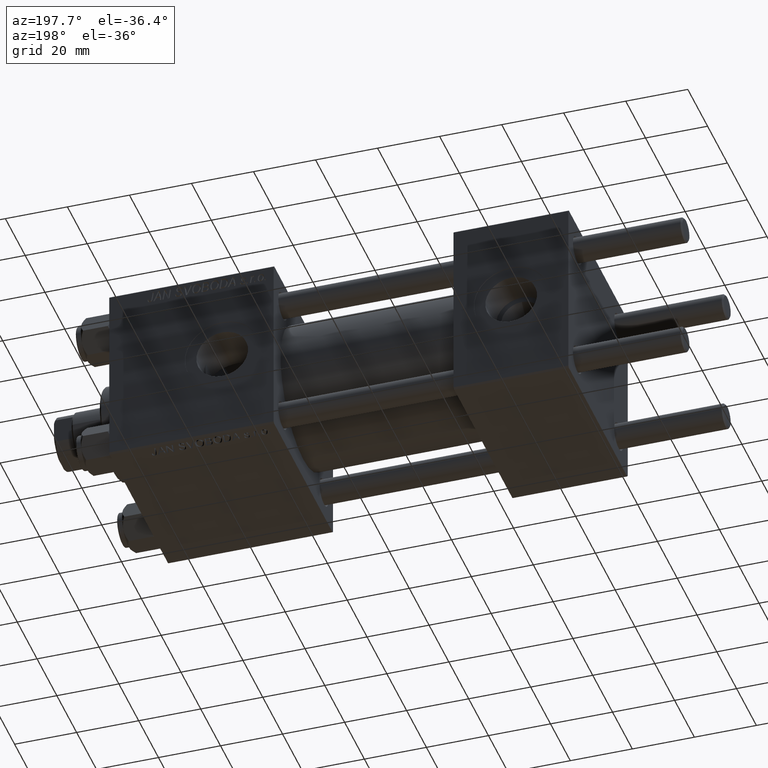
[diagram: clean part render]
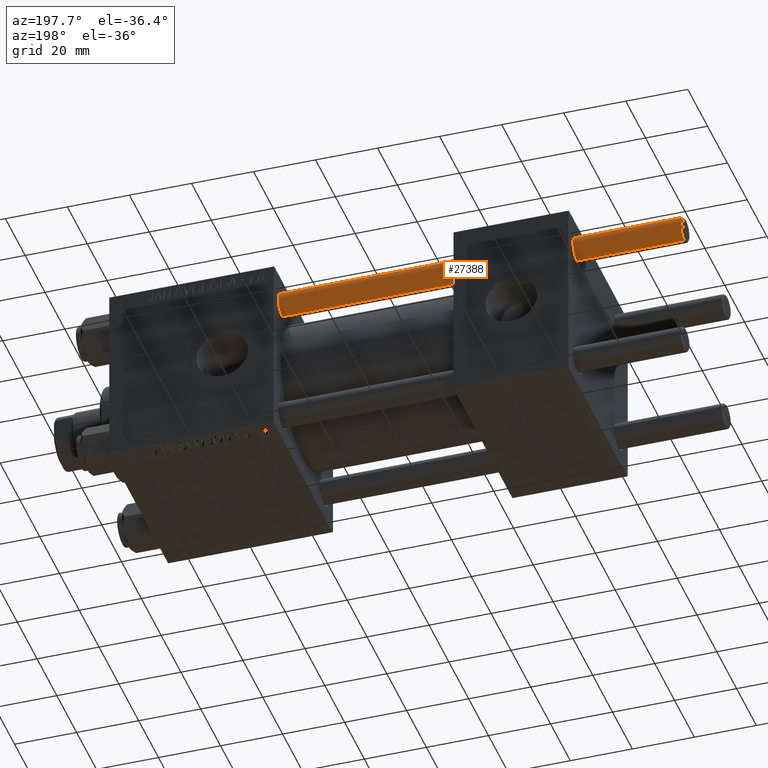
[diagram: same view with one face highlighted and labeled with its STEP entity id]
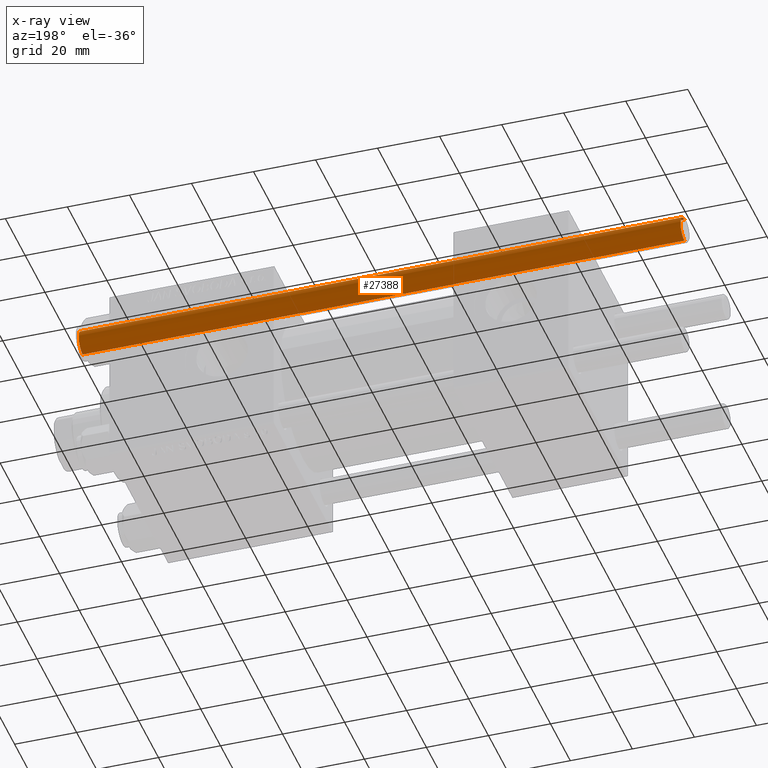
[diagram: x-ray of the same camera — body ghosted, the highlighted face saturated]
A machine part, auxiliary view. The second image highlights one B-rep face of the part: STEP entity #27388.
The next image is the same camera in x-ray: the body ghosted, the highlighted face saturated — about 0% of this face is hidden behind the body in this view.
In plain terms, the highlighted cylindrical surface (edge-blend (fillet) strip) has radius 4 mm, axis along (-1, -0, -0).
Its self-contained STEP definition (entity closure, byte-faithful):
#2360 = DIRECTION ( 'NONE',  ( 0.000000000000000000, 0.000000000000000000, -1.000000000000000000 ) ) ;
#2731 = EDGE_CURVE ( 'NONE', #19727, #22569, #25361, .T. ) ;
#6096 = CARTESIAN_POINT ( 'NONE',  ( 4.000000000000000000, 4.898587196589412829E-16, 0.5000000000000004441 ) ) ;
#7962 = ORIENTED_EDGE ( 'NONE', *, *, #2731, .T. ) ;
#10595 = DIRECTION ( 'NONE',  ( -0.000000000000000000, -0.000000000000000000, -1.000000000000000000 ) ) ;
#12586 = VERTEX_POINT ( 'NONE', #20962 ) ;
#15524 = CARTESIAN_POINT ( 'NONE',  ( 4.000000000000000000, 4.898587196589412829E-16, 194.5000000000000568 ) ) ;
#15737 = DIRECTION ( 'NONE',  ( -0.000000000000000000, -0.000000000000000000, 1.000000000000000000 ) ) ;
#15808 = CARTESIAN_POINT ( 'NONE',  ( 4.000000000000000000, 4.898587196589412829E-16, 195.0000000000000000 ) ) ;
#15992 = CARTESIAN_POINT ( 'NONE',  ( 0.000000000000000000, 0.000000000000000000, 0.5000000000000004441 ) ) ;
#17257 = AXIS2_PLACEMENT_3D ( 'NONE', #17727, #10595, #44533 ) ;
#17727 = CARTESIAN_POINT ( 'NONE',  ( 0.000000000000000000, 0.000000000000000000, 195.0000000000000000 ) ) ;
#18208 = CYLINDRICAL_SURFACE ( 'NONE', #17257, 4.000000000000000000 ) ;
#18364 = VECTOR ( 'NONE', #35769, 1000.000000000000000 ) ;
#19727 = VERTEX_POINT ( 'NONE', #24425 ) ;
#20040 = DIRECTION ( 'NONE',  ( 1.000000000000000000, 0.000000000000000000, 0.000000000000000000 ) ) ;
#20171 = EDGE_CURVE ( 'NONE', #19727, #12586, #20320, .T. ) ;
#20320 = LINE ( 'NONE', #31473, #18364 ) ;
#20446 = ORIENTED_EDGE ( 'NONE', *, *, #30112, .T. ) ;
#20962 = CARTESIAN_POINT ( 'NONE',  ( -4.000000000000000000, 0.000000000000000000, 0.5000000000000004441 ) ) ;
#22569 = VERTEX_POINT ( 'NONE', #15524 ) ;
#24425 = CARTESIAN_POINT ( 'NONE',  ( -4.000000000000000000, 0.000000000000000000, 194.5000000000000568 ) ) ;
#25168 = CARTESIAN_POINT ( 'NONE',  ( 0.000000000000000000, 0.000000000000000000, 194.5000000000000568 ) ) ;
#25361 = CIRCLE ( 'NONE', #42280, 4.000000000000000000 ) ;
#27388 = ADVANCED_FACE ( 'NONE', ( #36456 ), #18208, .T. ) ;
#27464 = DIRECTION ( 'NONE',  ( -0.000000000000000000, -0.000000000000000000, -1.000000000000000000 ) ) ;
#27716 = LINE ( 'NONE', #15808, #33012 ) ;
#30112 = EDGE_CURVE ( 'NONE', #46408, #12586, #30150, .T. ) ;
#30150 = CIRCLE ( 'NONE', #47112, 4.000000000000000000 ) ;
#31473 = CARTESIAN_POINT ( 'NONE',  ( -4.000000000000000000, 0.000000000000000000, 195.0000000000000000 ) ) ;
#33012 = VECTOR ( 'NONE', #27464, 1000.000000000000000 ) ;
#35769 = DIRECTION ( 'NONE',  ( -0.000000000000000000, -0.000000000000000000, -1.000000000000000000 ) ) ;
#36456 = FACE_OUTER_BOUND ( 'NONE', #36643, .T. ) ;
#36643 = EDGE_LOOP ( 'NONE', ( #7962, #49804, #20446, #46776 ) ) ;
#42280 = AXIS2_PLACEMENT_3D ( 'NONE', #25168, #2360, #44138 ) ;
#44138 = DIRECTION ( 'NONE',  ( 1.000000000000000000, 0.000000000000000000, 0.000000000000000000 ) ) ;
#44533 = DIRECTION ( 'NONE',  ( -1.000000000000000000, 0.000000000000000000, 0.000000000000000000 ) ) ;
#46408 = VERTEX_POINT ( 'NONE', #6096 ) ;
#46776 = ORIENTED_EDGE ( 'NONE', *, *, #20171, .F. ) ;
#46779 = EDGE_CURVE ( 'NONE', #22569, #46408, #27716, .T. ) ;
#47112 = AXIS2_PLACEMENT_3D ( 'NONE', #15992, #15737, #20040 ) ;
#49804 = ORIENTED_EDGE ( 'NONE', *, *, #46779, .T. ) ;